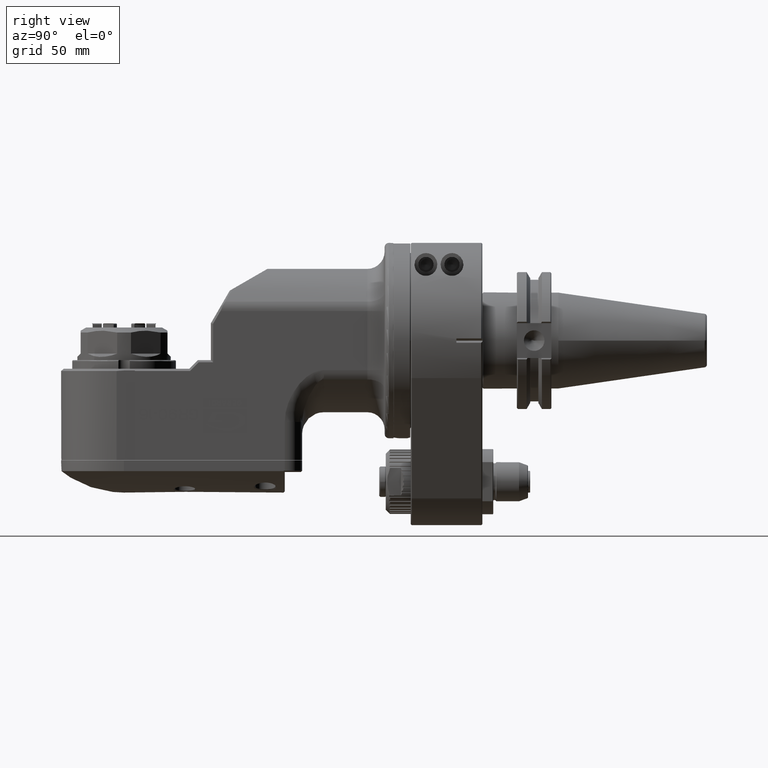
[diagram: clean part render]
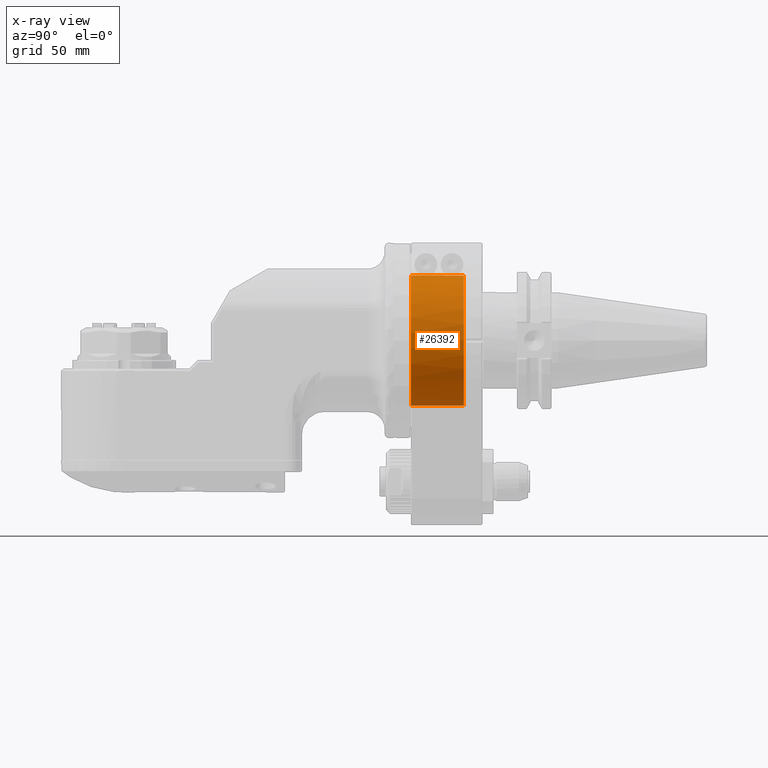
[diagram: x-ray — body ghosted, one internal face saturated and labeled with its STEP entity id]
A machine part, right view, then the same camera in x-ray: the body is ghosted and one INTERNAL B-rep face — a face not visible from any outside direction — is saturated and labeled: STEP entity #26392.
In plain terms, the highlighted cylindrical surface (bore or boss wall) has radius 30 mm, axis along (0, -1, -0).
Its self-contained STEP definition (entity closure, byte-faithful):
#151=CYLINDRICAL_SURFACE('',#28080,30.);
#1186=CIRCLE('',#28071,30.);
#1195=CIRCLE('',#28081,30.);
#1196=CIRCLE('',#28082,30.);
#2628=FACE_OUTER_BOUND('',#4195,.T.);
#4195=EDGE_LOOP('',(#17790,#17791,#17792,#17793,#17794));
#6112=LINE('',#39407,#8453);
#8453=VECTOR('',#31202,30.);
#10818=VERTEX_POINT('',#39387);
#10827=VERTEX_POINT('',#39406);
#10828=VERTEX_POINT('',#39408);
#13559=EDGE_CURVE('',#10818,#10818,#1186,.T.);
#13568=EDGE_CURVE('',#10818,#10827,#6112,.T.);
#13569=EDGE_CURVE('',#10827,#10828,#1195,.T.);
#13570=EDGE_CURVE('',#10828,#10827,#1196,.T.);
#17790=ORIENTED_EDGE('',*,*,#13559,.T.);
#17791=ORIENTED_EDGE('',*,*,#13568,.T.);
#17792=ORIENTED_EDGE('',*,*,#13569,.T.);
#17793=ORIENTED_EDGE('',*,*,#13570,.T.);
#17794=ORIENTED_EDGE('',*,*,#13568,.F.);
#26392=ADVANCED_FACE('',(#2628),#151,.T.);
#28071=AXIS2_PLACEMENT_3D('',#39388,#31182,#31183);
#28080=AXIS2_PLACEMENT_3D('',#39405,#31200,#31201);
#28081=AXIS2_PLACEMENT_3D('',#39409,#31203,#31204);
#28082=AXIS2_PLACEMENT_3D('',#39410,#31205,#31206);
#31182=DIRECTION('center_axis',(0.,1.,0.));
#31183=DIRECTION('ref_axis',(-1.,0.,0.));
#31200=DIRECTION('center_axis',(0.,-1.,0.));
#31201=DIRECTION('ref_axis',(-1.,0.,0.));
#31202=DIRECTION('',(0.,1.,0.));
#31203=DIRECTION('center_axis',(0.,-1.,0.));
#31204=DIRECTION('ref_axis',(1.,0.,-5.320511842919E-11));
#31205=DIRECTION('center_axis',(0.,-1.,0.));
#31206=DIRECTION('ref_axis',(1.,0.,-5.320511842919E-11));
#39387=CARTESIAN_POINT('',(30.,-25.,0.));
#39388=CARTESIAN_POINT('Origin',(0.,-25.,0.));
#39405=CARTESIAN_POINT('Origin',(0.,1.85,0.));
#39406=CARTESIAN_POINT('',(30.,-0.4999999999981,3.67394039744206E-15));
#39407=CARTESIAN_POINT('',(30.,1.85,3.67394039744206E-15));
#39408=CARTESIAN_POINT('',(1.228063166477E-9,-0.4999999999981,30.));
#39409=CARTESIAN_POINT('Origin',(0.,-0.4999999999981,0.));
#39410=CARTESIAN_POINT('Origin',(0.,-0.4999999999981,0.));